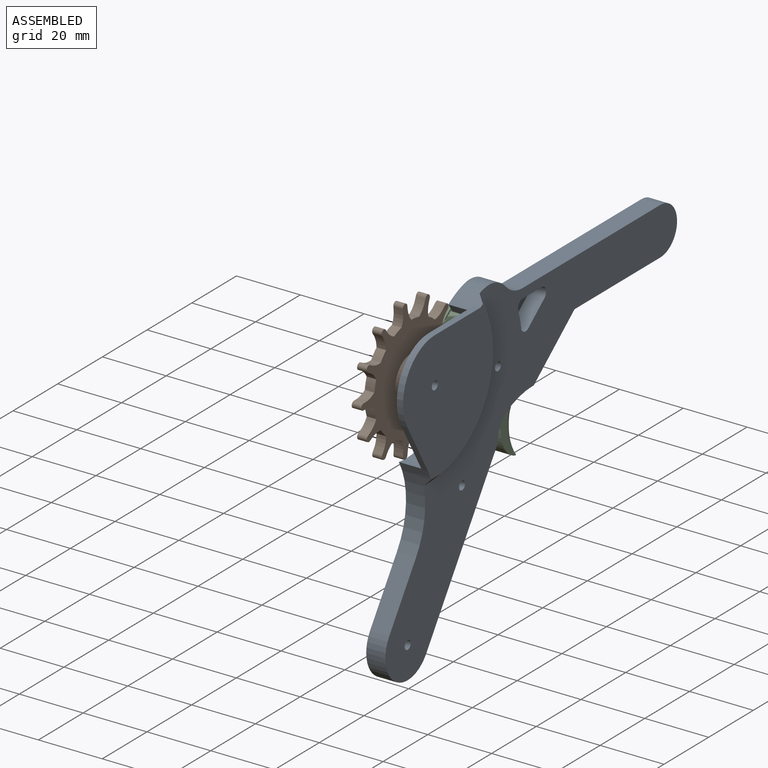
[diagram: assembled view]
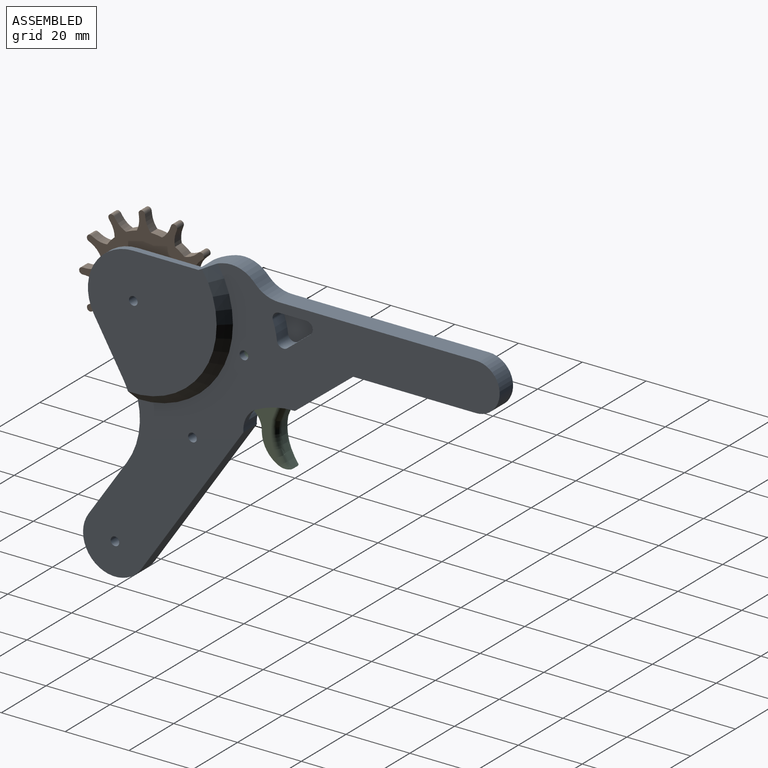
[diagram: assembled view, second angle]
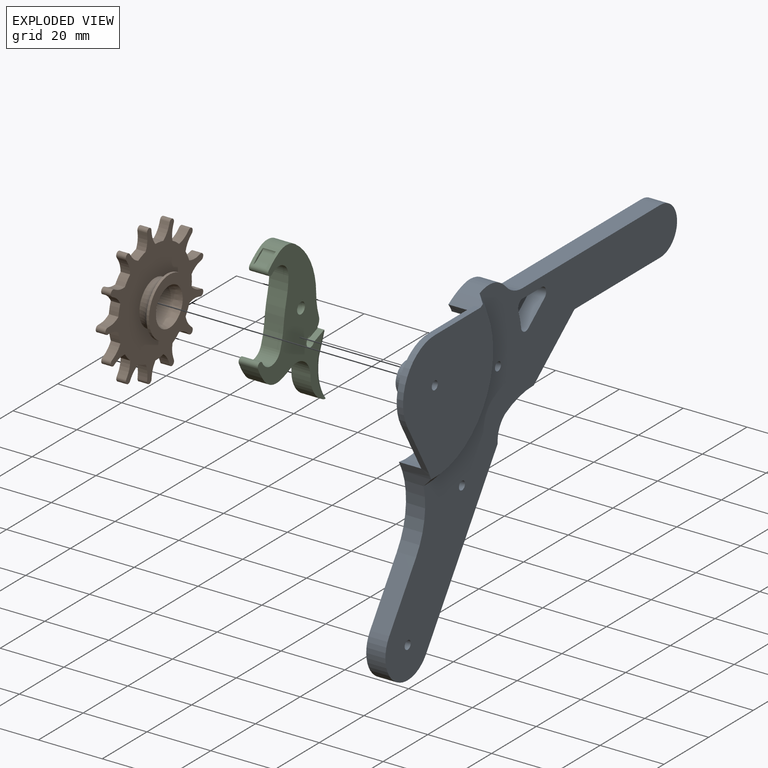
[diagram: exploded view]
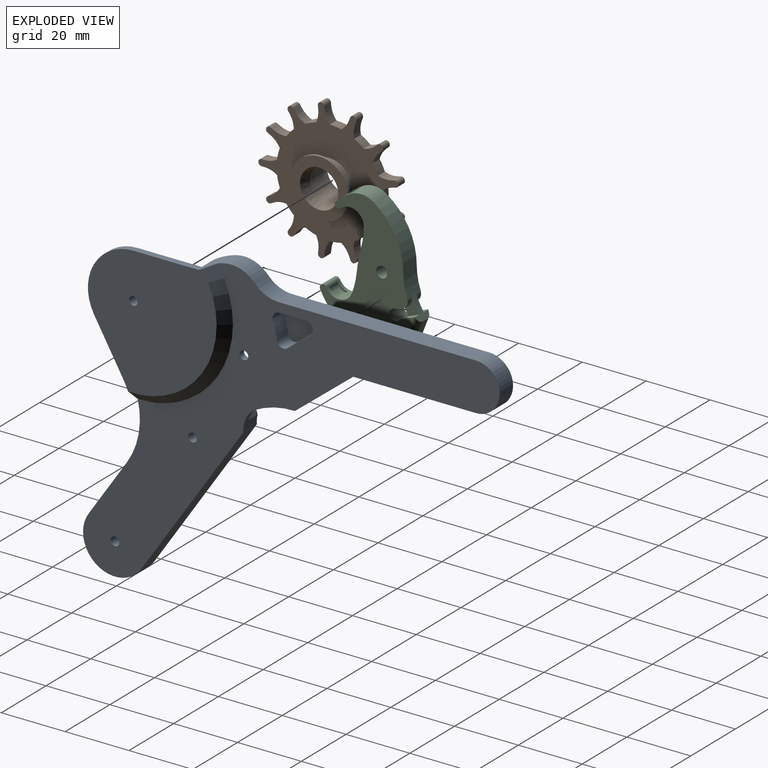
[diagram: exploded view, second angle]
ASSEMBLY  parts=3 mates=2
PART A: 71 faces, bbox 9x130.6x98.1 mm
  f0: plane 93.8x36.3mm, normal (1,0,0), area 852.1mm2, adj f2,f3,f4,f7,f8,f12,f13,f17
  f1: plane 130.55x98.13mm, normal (-1,0,0), area 3091.9mm2, adj f4,f5,f7,f14,f37,f38,f41,f42
  f2: plane 26.79x4mm, normal (0,0,1), area 107.1mm2, adj f0,f32,f35,f59
  f3: plane 33.62x4mm, normal (0,0,-1), area 134.5mm2, adj f0,f31,f35,f59
  f4: cylinder r=24.47mm len=6mm, axis (1,0,0), area 7.6mm2, adj f0,f1,f58,f70
  f5: plane 17.76x12.02mm, normal (0,0.83,0.56), area 128.7mm2, adj f1,f9,f42,f56
  f6: plane 37.33x37.33mm, normal (1,0,0), area 1003.6mm2, adj f8,f49,f53,f54,f55,f67
  f7: cylinder r=25.68mm len=12.85mm, axis (1,0,0), area 40.1mm2, adj f0,f1,f14,f20,f35,f47
  f8: cylinder r=23.11mm len=36.4mm, axis (1,0,0), area 339.2mm2, adj f0,f6,f9,f15,f16,f17,f18,f35
  f9: plane 62.46x50.51mm, normal (1,0,0), area 1423.2mm2, adj f5,f8,f14,f15,f19,f22,f27,f28
  f10: cylinder r=2.22mm len=4.44mm, axis (-1,0,0), area 35.9mm2, adj f33,f34,f35,f39
  f11: cylinder r=2.22mm len=4.44mm, axis (-1,0,0), area 35.9mm2, adj f33,f34,f35,f39
  f12: plane 16.11x12.87mm, normal (0,0.62,0.78), area 82.5mm2, adj f0,f13,f32,f35
  f13: cylinder r=21.1mm len=4mm, axis (1,0,0), area 0.6mm2, adj f0,f12,f20,f35
  f14: cylinder r=7.78mm len=7.14mm, axis (1,0,0), area 27.9mm2, adj f1,f7,f9,f19,f35,f43
  f15: cylinder r=20.09mm len=4mm, axis (-1,0,0), area 19mm2, adj f8,f9,f22,f35
  f16: cylinder r=4.1mm len=5.02mm, axis (-1,0,0), area 23.1mm2, adj f8,f23,f35,f40
  f17: cylinder r=20.09mm len=4mm, axis (-1,0,0), area 15.6mm2, adj f0,f8,f21,f35
  f18: cylinder r=4.1mm len=4mm, axis (-1,0,0), area 20.2mm2, adj f8,f26,f35,f40
  f19: cylinder r=6.01mm len=4mm, axis (1,0,0), area 16.7mm2, adj f9,f14,f28,f35
  f20: plane 4x1.46mm, normal (0,0.97,0.25), area 6.1mm2, adj f0,f7,f13,f35
  f21: cylinder r=22.2mm len=4mm, axis (1,0,0), area 11.7mm2, adj f0,f17,f35,f68
  f22: cylinder r=22.2mm len=4mm, axis (1,0,0), area 11.7mm2, adj f9,f15,f35,f69
  f23: cylinder r=25.51mm len=8.23mm, axis (-1,0,0), area 35.4mm2, adj f16,f26,f35,f40
  f24: cylinder r=21.1mm len=4mm, axis (1,0,0), area 0.6mm2, adj f0,f25,f29,f35
  f25: cylinder r=21.47mm len=19.39mm, axis (-1,0,0), area 85.2mm2, adj f0,f24,f35,f68
  f26: cylinder r=25.51mm len=8.79mm, axis (-1,0,0), area 35.4mm2, adj f18,f23,f35,f40
  f27: cylinder r=21.47mm len=4.8mm, axis (-1,0,0), area 21.3mm2, adj f9,f28,f35,f69
  f28: cylinder r=6.01mm len=4mm, axis (1,0,0), area 3.7mm2, adj f9,f19,f27,f35
  f29: cylinder r=21.1mm len=4mm, axis (1,0,0), area 11.9mm2, adj f0,f24,f30,f35
  f30: plane 20.81x16.63mm, normal (0,-0.62,-0.78), area 106.6mm2, adj f0,f29,f31,f35
  f31: cylinder r=4.44mm len=4mm, axis (1,0,0), area 12mm2, adj f0,f3,f30,f35
  f32: cylinder r=5.27mm len=10.55mm, axis (-1,0,0), area 80.5mm2, adj f0,f2,f12,f35
  f33: plane 6.95x4mm, normal (0,0,-1), area 27.8mm2, adj f10,f11,f35,f39
  f34: plane 6.95x4mm, normal (0,0,1), area 27.8mm2, adj f10,f11,f35,f39
  f35: plane 88.92x40.66mm, normal (1,0,0), area 1141.5mm2, adj f2,f3,f7,f8,f10,f11,f12,f13
  f36: cylinder r=1.35mm len=9mm, axis (1,0,0), area 76.3mm2, adj f51,f65
  f37: cylinder r=1.35mm len=2.7mm, axis (1,0,0), area 17mm2, adj f1,f35
  f38: cylinder r=1.35mm len=6mm, axis (1,0,0), area 50.9mm2, adj f1,f9
  f39: plane 13.33x4.44mm, normal (1,0,0), area 51.6mm2, adj f10,f11,f33,f34
  f40: plane 22.59x8.91mm, normal (1,0,0), area 58.4mm2, adj f8,f16,f18,f23,f26
  f41: cylinder r=1.35mm len=6mm, axis (1,0,0), area 50.9mm2, adj f1,f9
  f42: cylinder r=10mm len=18.28mm, axis (1,0,0), area 188.5mm2, adj f1,f5,f9,f43
  f43: plane 47.25x31.99mm, normal (0,-0.83,-0.56), area 342.4mm2, adj f1,f9,f14,f42
  f44: plane 7.23x5.78mm, normal (0,0.62,0.78), area 46.3mm2, adj f1,f61,f63,f64
  f45: plane 61.79x6mm, normal (0,0,1), area 370.7mm2, adj f0,f1,f58,f60
  f46: plane 38.45x6mm, normal (0,0,-1), area 230.7mm2, adj f0,f1,f47,f60
  f47: plane 18.23x14.57mm, normal (0,-0.62,-0.78), area 140mm2, adj f0,f1,f7,f46
  f48: cylinder r=24.47mm len=5.34mm, axis (1,0,0), area 27.5mm2, adj f1,f61,f62,f64
  f49: cylinder r=23.09mm len=9mm, axis (1,0,0), area 34.6mm2, adj f0,f6,f8,f50,f51,f52,f54
  f50: cylinder r=25.2mm len=7.7mm, axis (1,0,0), area 21.5mm2, adj f0,f1,f49,f52,f70
  f51: plane 40.91x40.33mm, normal (-1,0,0), area 1268mm2, adj f36,f49,f52,f53,f54,f55,f56
  f52: cone r=26.11mm half-angle=45deg, axis (1,0,0), area 258.3mm2, adj f1,f49,f50,f51,f56
  f53: cylinder r=14.22mm len=21.33mm, axis (-1,0,0), area 59.6mm2, adj f6,f51,f54,f55
  f54: plane 20.42x2mm, normal (0,0,1), area 40.8mm2, adj f6,f49,f51,f53
  f55: plane 15.78x9.11mm, normal (0,0.87,-0.5), area 36.4mm2, adj f6,f51,f53,f56
  f56: cylinder r=23.64mm len=25.08mm, axis (-1,0,0), area 174.1mm2, adj f1,f5,f8,f9,f51,f52,f55
  f57: plane 8.58x5mm, normal (0,0,-1), area 42.9mm2, adj f1,f61,f62,f63
  f58: cylinder r=10mm len=7.21mm, axis (1,0,0), area 48.3mm2, adj f0,f1,f4,f45
  f59: cylinder r=4.44mm len=8.89mm, axis (1,0,0), area 55.9mm2, adj f0,f2,f3,f35
  f60: cylinder r=7.44mm len=14.89mm, axis (1,0,0), area 140.3mm2, adj f0,f1,f45,f46
  f61: plane 12.58x9.78mm, normal (-1,0,0), area 84.3mm2, adj f44,f48,f57,f62,f63,f64
  f62: cylinder r=2mm len=5mm, axis (1,0,0), area 19.1mm2, adj f1,f48,f57,f61
  f63: cylinder r=2mm len=5mm, axis (1,0,0), area 24.7mm2, adj f1,f44,f57,f61
  f64: cylinder r=2mm len=5mm, axis (1,0,0), area 21.3mm2, adj f1,f44,f48,f61
  f65: plane 9.4x9.4mm, normal (1,0,0), area 63.7mm2, adj f36,f66
  f66: cylinder r=4.7mm len=9.4mm, axis (-1,0,0), area 177.2mm2, adj f65,f67
  f67: cone r=4.7mm half-angle=45deg, axis (-1,0,0), area 46.2mm2, adj f6,f66
  f68: cylinder r=7mm len=6.65mm, axis (1,0,0), area 28.6mm2, adj f0,f21,f25,f35
  f69: cylinder r=7mm len=6.73mm, axis (1,0,0), area 28.6mm2, adj f9,f22,f27,f35
  f70: cylinder r=10mm len=9.5mm, axis (1,0,0), area 61.4mm2, adj f0,f1,f4,f50
PART B: 89 faces, bbox 12x44.1x43.8 mm
  f0: plane 18.27x18.27mm, normal (1,0,0), area 149.1mm2, adj f6,f88
  f1: cylinder r=5mm len=10mm, axis (1,0,0), area 188.5mm2, adj f87,f88
  f2: plane 18.27x18.27mm, normal (-1,0,0), area 149.1mm2, adj f3,f87
  f3: cylinder r=9.14mm len=18.27mm, axis (-1,0,0), area 45.9mm2, adj f2,f4
  f4: torus R=11.27mm, axis (-1,0,0), area 217.6mm2, adj f3,f34
  f5: torus R=11.27mm, axis (-1,0,0), area 217.6mm2, adj f6,f33
  f6: cylinder r=9.14mm len=18.27mm, axis (-1,0,0), area 45.9mm2, adj f0,f5
  f7: plane 3x0.93mm, normal (0,-0.97,0.24), area 2.9mm2, adj f33,f34,f36,f86
  f8: plane 3x0.72mm, normal (0,0.75,-0.66), area 2.9mm2, adj f33,f34,f35,f85
  f9: plane 3x0.72mm, normal (0,-0.75,-0.66), area 2.9mm2, adj f33,f34,f38,f83
  f10: plane 3x0.93mm, normal (0,0.97,0.24), area 2.9mm2, adj f33,f34,f37,f82
  f11: plane 3x0.85mm, normal (0,0.89,-0.46), area 2.9mm2, adj f33,f34,f39,f80
  f12: plane 3x0.79mm, normal (0,-0.57,0.82), area 2.9mm2, adj f33,f34,f40,f79
  f13: plane 3x0.9mm, normal (0,-0.35,0.94), area 2.9mm2, adj f33,f34,f44,f77
  f14: plane 3x0.96mm, normal (0,-0.12,-0.99), area 2.9mm2, adj f33,f34,f43,f76
  f15: plane 3x0.96mm, normal (0,1,0), area 2.9mm2, adj f33,f34,f41,f74
  f16: plane 3x0.85mm, normal (0,-0.89,0.46), area 2.9mm2, adj f33,f34,f39,f73
  f17: plane 3x0.9mm, normal (0,-0.35,-0.94), area 2.9mm2, adj f33,f34,f45,f71
  f18: plane 3x0.72mm, normal (0,0.75,0.66), area 2.9mm2, adj f33,f34,f38,f70
  f19: plane 3x0.79mm, normal (0,0.57,-0.82), area 2.9mm2, adj f33,f34,f40,f68
  f20: plane 3x0.96mm, normal (0,-0.12,0.99), area 2.9mm2, adj f33,f34,f46,f67
  f21: plane 3x0.93mm, normal (0,-0.97,-0.24), area 2.9mm2, adj f33,f34,f37,f65
  f22: plane 3x0.93mm, normal (0,0.97,-0.24), area 2.9mm2, adj f33,f34,f36,f64
  f23: plane 3x0.72mm, normal (0,-0.75,0.66), area 2.9mm2, adj f33,f34,f35,f62
  f24: plane 3x0.9mm, normal (0,0.35,-0.94), area 2.9mm2, adj f33,f34,f44,f61
  f25: plane 3x0.96mm, normal (0,0.12,0.99), area 2.9mm2, adj f33,f34,f43,f59
  f26: plane 3x0.79mm, normal (0,-0.57,-0.82), area 2.9mm2, adj f33,f34,f47,f58
  f27: plane 3x0.79mm, normal (0,0.57,0.82), area 2.9mm2, adj f33,f34,f47,f56
  f28: plane 3x0.85mm, normal (0,-0.89,-0.46), area 2.9mm2, adj f33,f34,f42,f55
  f29: plane 3x0.9mm, normal (0,0.35,0.94), area 2.9mm2, adj f33,f34,f45,f53
  f30: plane 3x0.96mm, normal (0,0.12,-0.99), area 2.9mm2, adj f33,f34,f46,f52
  f31: plane 3x0.85mm, normal (0,0.89,0.46), area 2.9mm2, adj f33,f34,f42,f50
  f32: plane 3x0.96mm, normal (0,-1,0), area 2.9mm2, adj f33,f34,f41,f48
  f33: plane 44.14x43.83mm, normal (1,0,0), area 881.7mm2, adj f5,f7,f8,f9,f10,f11,f12,f13
  f34: plane 44.14x43.83mm, normal (-1,0,0), area 881.7mm2, adj f4,f7,f8,f9,f10,f11,f12,f13
  f35: cylinder r=1mm len=3mm, axis (1,0,0), area 9.4mm2, adj f8,f23,f33,f34
  f36: cylinder r=1mm len=3mm, axis (1,0,0), area 9.4mm2, adj f7,f22,f33,f34
  f37: cylinder r=1mm len=3mm, axis (1,0,0), area 9.4mm2, adj f10,f21,f33,f34
  f38: cylinder r=1mm len=3mm, axis (1,0,0), area 9.4mm2, adj f9,f18,f33,f34
  f39: cylinder r=1mm len=3mm, axis (1,0,0), area 9.4mm2, adj f11,f16,f33,f34
  f40: cylinder r=1mm len=3mm, axis (1,0,0), area 9.4mm2, adj f12,f19,f33,f34
  f41: cylinder r=1mm len=3mm, axis (1,0,0), area 9.4mm2, adj f15,f32,f33,f34
  f42: cylinder r=1mm len=3mm, axis (1,0,0), area 9.4mm2, adj f28,f31,f33,f34
  f43: cylinder r=1mm len=3mm, axis (1,0,0), area 9.4mm2, adj f14,f25,f33,f34
  f44: cylinder r=1mm len=3mm, axis (1,0,0), area 9.4mm2, adj f13,f24,f33,f34
  f45: cylinder r=1mm len=3mm, axis (1,0,0), area 9.4mm2, adj f17,f29,f33,f34
  f46: cylinder r=1mm len=3mm, axis (1,0,0), area 9.4mm2, adj f20,f30,f33,f34
  f47: cylinder r=1mm len=3mm, axis (1,0,0), area 9.4mm2, adj f26,f27,f33,f34
  f48: cylinder r=7mm len=3.91mm, axis (1,0,0), area 12.4mm2, adj f32,f33,f34,f49
  f49: cylinder r=16.5mm len=3.47mm, axis (1,0,0), area 10.7mm2, adj f33,f34,f48,f50
  f50: cylinder r=7mm len=3mm, axis (1,0,0), area 12.4mm2, adj f31,f33,f34,f49
  f51: cylinder r=16.5mm len=3.55mm, axis (1,0,0), area 10.7mm2, adj f33,f34,f52,f53
  f52: cylinder r=7mm len=3.73mm, axis (1,0,0), area 12.4mm2, adj f30,f33,f34,f51
  f53: cylinder r=7mm len=3.23mm, axis (1,0,0), area 12.4mm2, adj f29,f33,f34,f51
  f54: cylinder r=16.5mm len=3mm, axis (1,0,0), area 10.7mm2, adj f33,f34,f55,f56
  f55: cylinder r=7mm len=4.01mm, axis (1,0,0), area 12.4mm2, adj f28,f33,f34,f54
  f56: cylinder r=7mm len=3.89mm, axis (1,0,0), area 12.4mm2, adj f27,f33,f34,f54
  f57: cylinder r=16.5mm len=3.34mm, axis (1,0,0), area 10.7mm2, adj f33,f34,f58,f59
  f58: cylinder r=7mm len=3.2mm, axis (1,0,0), area 12.4mm2, adj f26,f33,f34,f57
  f59: cylinder r=7mm len=4.02mm, axis (1,0,0), area 12.4mm2, adj f25,f33,f34,f57
  f60: cylinder r=16.5mm len=3mm, axis (1,0,0), area 10.7mm2, adj f33,f34,f61,f62
  f61: cylinder r=7mm len=4.08mm, axis (1,0,0), area 12.4mm2, adj f24,f33,f34,f60
  f62: cylinder r=7mm len=3.71mm, axis (1,0,0), area 12.4mm2, adj f23,f33,f34,f60
  f63: cylinder r=16.5mm len=3.57mm, axis (1,0,0), area 10.7mm2, adj f33,f34,f64,f65
  f64: cylinder r=7mm len=3.51mm, axis (1,0,0), area 12.4mm2, adj f22,f33,f34,f63
  f65: cylinder r=7mm len=3.51mm, axis (1,0,0), area 12.4mm2, adj f21,f33,f34,f63
  f66: cylinder r=16.5mm len=3.34mm, axis (1,0,0), area 10.7mm2, adj f33,f34,f67,f68
  f67: cylinder r=7mm len=4.02mm, axis (1,0,0), area 12.4mm2, adj f20,f33,f34,f66
  f68: cylinder r=7mm len=3.2mm, axis (1,0,0), area 12.4mm2, adj f19,f33,f34,f66
  f69: cylinder r=16.5mm len=3mm, axis (1,0,0), area 10.7mm2, adj f33,f34,f70,f71
  f70: cylinder r=7mm len=3.71mm, axis (1,0,0), area 12.4mm2, adj f18,f33,f34,f69
  f71: cylinder r=7mm len=4.08mm, axis (1,0,0), area 12.4mm2, adj f17,f33,f34,f69
  f72: cylinder r=16.5mm len=3.47mm, axis (1,0,0), area 10.7mm2, adj f33,f34,f73,f74
  f73: cylinder r=7mm len=3mm, axis (1,0,0), area 12.4mm2, adj f16,f33,f34,f72
  f74: cylinder r=7mm len=3.91mm, axis (1,0,0), area 12.4mm2, adj f15,f33,f34,f72
  f75: cylinder r=16.5mm len=3.55mm, axis (1,0,0), area 10.7mm2, adj f33,f34,f76,f77
  f76: cylinder r=7mm len=3.73mm, axis (1,0,0), area 12.4mm2, adj f14,f33,f34,f75
  f77: cylinder r=7mm len=3.23mm, axis (1,0,0), area 12.4mm2, adj f13,f33,f34,f75
  f78: cylinder r=16.5mm len=3mm, axis (1,0,0), area 10.7mm2, adj f33,f34,f79,f80
  f79: cylinder r=7mm len=3.89mm, axis (1,0,0), area 12.4mm2, adj f12,f33,f34,f78
  f80: cylinder r=7mm len=4.01mm, axis (1,0,0), area 12.4mm2, adj f11,f33,f34,f78
  f81: cylinder r=16.5mm len=3.16mm, axis (1,0,0), area 10.7mm2, adj f33,f34,f82,f83
  f82: cylinder r=7mm len=4.08mm, axis (1,0,0), area 12.4mm2, adj f10,f33,f34,f81
  f83: cylinder r=7mm len=3.48mm, axis (1,0,0), area 12.4mm2, adj f9,f33,f34,f81
  f84: cylinder r=16.5mm len=3.16mm, axis (1,0,0), area 10.7mm2, adj f33,f34,f85,f86
  f85: cylinder r=7mm len=3.48mm, axis (1,0,0), area 12.4mm2, adj f8,f33,f34,f84
  f86: cylinder r=7mm len=4.08mm, axis (1,0,0), area 12.4mm2, adj f7,f33,f34,f84
  f87: cone r=5mm half-angle=18.4deg, axis (-1,0,0), area 109.3mm2, adj f1,f2
  f88: cone r=5mm half-angle=18.4deg, axis (1,0,0), area 109.3mm2, adj f0,f1
PART C: 48 faces, bbox 6.3x34.5x52 mm
  f0: cylinder r=4.37mm len=7.87mm, axis (-1,0,0), area 44.5mm2, adj f8,f9,f18,f31,f32,f33,f41
  f1: cylinder r=19.82mm len=6mm, axis (-1,0,0), area 11.5mm2, adj f4,f18,f25,f28,f33,f40,f47
  f2: cylinder r=21.37mm len=12.68mm, axis (1,0,0), area 61.3mm2, adj f5,f13,f18,f19,f21,f24,f33,f34
  f3: cylinder r=4.37mm len=7.6mm, axis (-1,0,0), area 60.5mm2, adj f4,f10,f18,f33
  f4: cylinder r=1.11mm len=6mm, axis (-1,0,0), area 23.2mm2, adj f1,f3,f18,f27,f28,f33,f40
  f5: cylinder r=21.21mm len=16.32mm, axis (-1,0,0), area 124.5mm2, adj f2,f18,f33,f47
  f6: cylinder r=21.21mm len=6mm, axis (-1,0,0), area 29.8mm2, adj f14,f18,f33,f46
  f7: cylinder r=19.82mm len=6mm, axis (-1,0,0), area 34mm2, adj f8,f18,f33,f46
  f8: cylinder r=1.11mm len=6mm, axis (-1,0,0), area 22.9mm2, adj f0,f7,f18,f30,f32,f33,f41
  f9: cylinder r=25.78mm len=6.46mm, axis (-1,0,0), area 39.1mm2, adj f0,f15,f18,f33
  f10: cylinder r=25.78mm len=6.5mm, axis (-1,0,0), area 39.1mm2, adj f3,f15,f18,f33
  f11: cylinder r=15.73mm len=12.36mm, axis (-1,0,0), area 27.4mm2, adj f12,f13,f42,f45
  f12: cylinder r=9.26mm len=9.34mm, axis (-1,0,0), area 73.9mm2, adj f11,f14,f18,f33,f42,f45
  f13: plane 6x2mm, normal (0,-0.97,-0.25), area 12.4mm2, adj f2,f11,f43,f44
  f14: cylinder r=6.27mm len=9.64mm, axis (1,0,0), area 78.7mm2, adj f6,f12,f18,f33
  f15: cylinder r=44.44mm len=7.07mm, axis (-1,0,0), area 42.5mm2, adj f9,f10,f18,f33
  f16: cylinder r=1.78mm len=6mm, axis (1,0,0), area 46mm2, adj f18,f19,f23,f33,f34,f38
  f17: cylinder r=1.75mm len=6mm, axis (1,0,0), area 66mm2, adj f18,f33
  f18: plane 47.66x31.1mm, normal (-1,0,0), area 560.4mm2, adj f0,f1,f2,f3,f4,f5,f6,f7
  f19: plane 4.65x3.32mm, normal (0,0.46,0.89), area 10mm2, adj f2,f16,f18,f21,f22,f44
  f20: plane 2.08x0.85mm, normal (0,-0.46,-0.89), area 1.9mm2, adj f18,f21,f22,f23,f24
  f21: plane 6.36x4.75mm, normal (-1,0,0), area 10.3mm2, adj f2,f19,f20,f22,f24
  f22: bspline ~14.22x7.11mm, area 4.4mm2, adj f19,f20,f21,f23,f37
  f23: cylinder r=2.67mm len=3mm, axis (-1,0,0), area 3mm2, adj f16,f18,f20,f22
  f24: cylinder r=2.67mm len=3.54mm, axis (-1,0,0), area 8.2mm2, adj f2,f18,f20,f21
  f25: cylinder r=1.19mm len=4mm, axis (1,0,0), area 4.9mm2, adj f1,f26,f28,f40
  f26: cylinder r=19.22mm len=4mm, axis (1,0,0), area 9.4mm2, adj f25,f27,f28,f40
  f27: cylinder r=3.52mm len=4mm, axis (1,0,0), area 6.5mm2, adj f4,f26,f28,f40
  f28: plane 4.12x3.81mm, normal (1,0,0), area 2.6mm2, adj f1,f4,f25,f26,f27
  f29: cylinder r=4.97mm len=4mm, axis (1,0,0), area 6.6mm2, adj f30,f31,f32,f41
  f30: cylinder r=1.51mm len=4mm, axis (1,0,0), area 5.5mm2, adj f8,f29,f32,f41
  f31: cylinder r=0.87mm len=4mm, axis (1,0,0), area 4.7mm2, adj f0,f29,f32,f41
  f32: plane 3.34x2.39mm, normal (1,0,0), area 1.9mm2, adj f0,f8,f29,f30,f31
  f33: plane 47.66x31.1mm, normal (1,0,0), area 560.4mm2, adj f0,f1,f2,f3,f4,f5,f6,f7
  f34: plane 4.65x3.32mm, normal (0,0.46,0.89), area 10mm2, adj f2,f16,f33,f36,f37,f43
  f35: plane 2.08x0.85mm, normal (0,-0.46,-0.89), area 1.9mm2, adj f33,f36,f37,f38,f39
  f36: plane 6.36x4.75mm, normal (1,0,0), area 10.3mm2, adj f2,f34,f35,f37,f39
  f37: bspline ~14.22x7.11mm, area 4.4mm2, adj f22,f34,f35,f36,f38
  f38: cylinder r=2.67mm len=3mm, axis (1,0,0), area 3mm2, adj f16,f33,f35,f37
  f39: cylinder r=2.67mm len=3.54mm, axis (1,0,0), area 8.2mm2, adj f2,f33,f35,f36
  f40: plane 4.12x3.81mm, normal (-1,0,0), area 2.6mm2, adj f1,f4,f25,f26,f27
  f41: plane 3.34x2.39mm, normal (-1,0,0), area 1.9mm2, adj f0,f8,f29,f30,f31
  f42: torus R=17.73mm, axis (-1,0,0), area 41.4mm2, adj f11,f12,f33,f43
  f43: cylinder r=2mm len=7.72mm, axis (0,0.25,-0.97), area 21.1mm2, adj f2,f13,f33,f34,f42
  f44: cylinder r=2mm len=7.72mm, axis (0,0.25,-0.97), area 21.1mm2, adj f2,f13,f18,f19,f45
  f45: torus R=17.73mm, axis (1,0,0), area 41.4mm2, adj f11,f12,f18,f44
  f46: cylinder r=7mm len=7.01mm, axis (-1,0,0), area 45.1mm2, adj f6,f7,f18,f33
  f47: cylinder r=7mm len=7.14mm, axis (-1,0,0), area 45.1mm2, adj f1,f5,f18,f33
PLACE A rot(axis=(0,0,1),180deg) t=(-6,129.25,14.34)mm
PLACE B rot(axis=(0,-0.06,1),180deg) t=(-6,127.26,33.99)mm
PLACE C rot(axis=(0,0.06,1),180deg) t=(-5,130.04,-0.71)mm
MATE revolute A.f21 <-> C.f17  axis (-1,0,0) through (-2,0,0)mm
MATE revolute B.f1 <-> A.f36  axis (-1,0,0) through (-6,-32.56,7.85)mm
